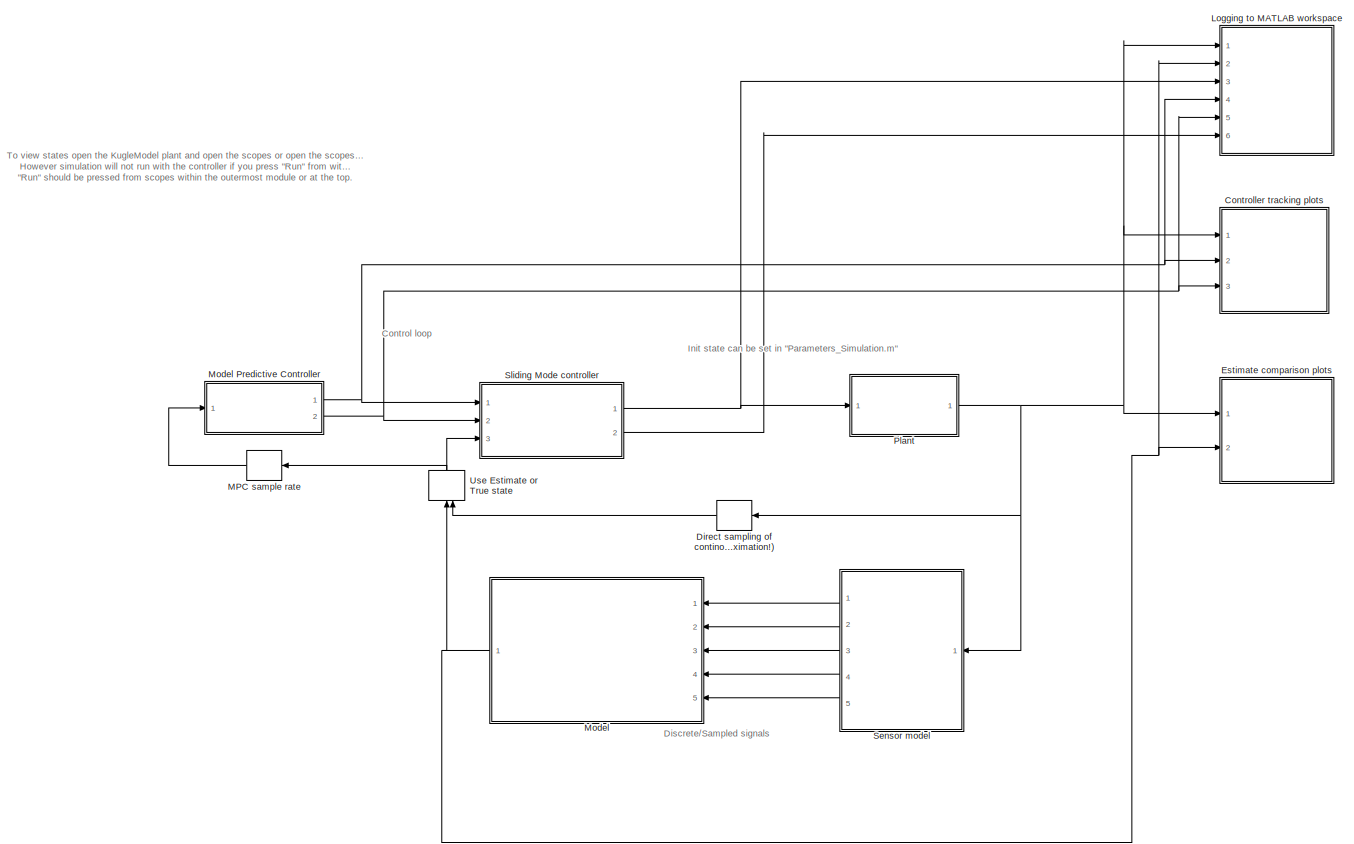
[diagram: root canvas - part 1/1, most of the canvas]
MODEL slx_b11e7a9618eb
KIND model
CONFIG AbsTol = auto
CONFIG EnableMultiTasking = off
CONFIG FixedStep = 1e-3
CONFIG InitFcn = Parameters_General\nParameters_Simulation\nParameters_Controllers
CONFIG MaxStep = 1e-2
CONFIG MinStep = auto
CONFIG PreLoadFcn = modelDir = fileparts(get_param(bdroot, 'FileName'));\naddpath(fullfile(modelDir,'../Parameters'));\naddpath(fullfile(modelDir,'subsystems'));\n\nParameters_General\nParameters_Simulation\nParameters_Controllers
CONFIG RelTol = 1e-5
CONFIG SampleTimeConstraint = Unconstrained
CONFIG Solver = VariableStepAuto
CONFIG SolverName = VariableStepAuto
CONFIG StartTime = 0.0
CONFIG StopFcn = StructurizeLoggedData
CONFIG StopTime = 40
BLOCK [ModelReference] Controller tracking plots
  ModelNameDialog = TrackingComparison
  ModelReferenceVersion = 1.13
  Ports = [3]
BLOCK [ZeroOrderHold] Direct sampling of continous states (simple//approximation!)
  SampleTime = Ts
BLOCK [ModelReference] Estimate comparison plots
  ModelNameDialog = StatesComparison
  ModelReferenceVersion = 1.9
  Ports = [2]
BLOCK [ModelReference] Logging to MATLAB workspace
  ModelNameDialog = Logging
  ModelReferenceVersion = 1.12
  Ports = [6]
BLOCK [ZeroOrderHold] MPC sample rate
  SampleTime = Ts_MPC
BLOCK [ModelReference] Model
  ModelNameDialog = Estimators
  ModelReferenceVersion = 1.12
  Ports = [5, 1]
BLOCK [ModelReference] Model Predictive Controller
  ModelNameDialog = MPC
  ModelReferenceVersion = 1.177
  Ports = [1, 2]
BLOCK [ModelReference] Plant
  ModelNameDialog = KugleModel
  ModelReferenceVersion = 1.2097
  Ports = [1, 1]
BLOCK [ModelReference] Sensor model
  ModelNameDialog = SensorModels
  ModelReferenceVersion = 1.18
  Ports = [1, 5]
BLOCK [ModelReference] Sliding Mode controller
  ModelNameDialog = SlidingMode
  ModelReferenceVersion = 1.48
  Ports = [3, 2]
BLOCK [ManualSwitch] Use Estimate or True state
ANNOTATION (root): Control loop
ANNOTATION (root): Discrete/Sampled signals
ANNOTATION (root): Init state can be set in "Parameters_Simulation.m"
ANNOTATION (root): To view states open the KugleModel plant and open the scopes or open the scopes inside the plot modules on the right. However simulation will not run with the controller if you press "Run" from within the scopes inside any of the modules. "Run" should be pressed from scopes within the outermost module or at the top.
LINE Direct sampling of continous states (simple//approximation!):1 -> Use Estimate or True state:2
LINE MPC sample rate:1 -> Model Predictive Controller:1
NET Model Predictive Controller:1 -> Controller tracking plots:2, Logging to MATLAB workspace:4, Sliding Mode controller:1
NET Model Predictive Controller:2 -> Controller tracking plots:3, Logging to MATLAB workspace:5, Sliding Mode controller:2
NET Model:1 -> Estimate comparison plots:2, Logging to MATLAB workspace:2, Use Estimate or True state:1
NET Plant:1 -> Controller tracking plots:1, Direct sampling of continous states (simple//approximation!):1, Estimate comparison plots:1, Logging to MATLAB workspace:1, Sensor model:1
LINE Sensor model:1 -> Model:1
LINE Sensor model:2 -> Model:2
LINE Sensor model:3 -> Model:3
LINE Sensor model:4 -> Model:4
LINE Sensor model:5 -> Model:5
NET Sliding Mode controller:1 -> Logging to MATLAB workspace:3, Plant:1
LINE Sliding Mode controller:2 -> Logging to MATLAB workspace:6
NET Use Estimate or True state:1 -> MPC sample rate:1, Sliding Mode controller:3
note: NET lines group one-source signal fan-out (src -> all destinations, sorted); 1:1 wires keep LINE
